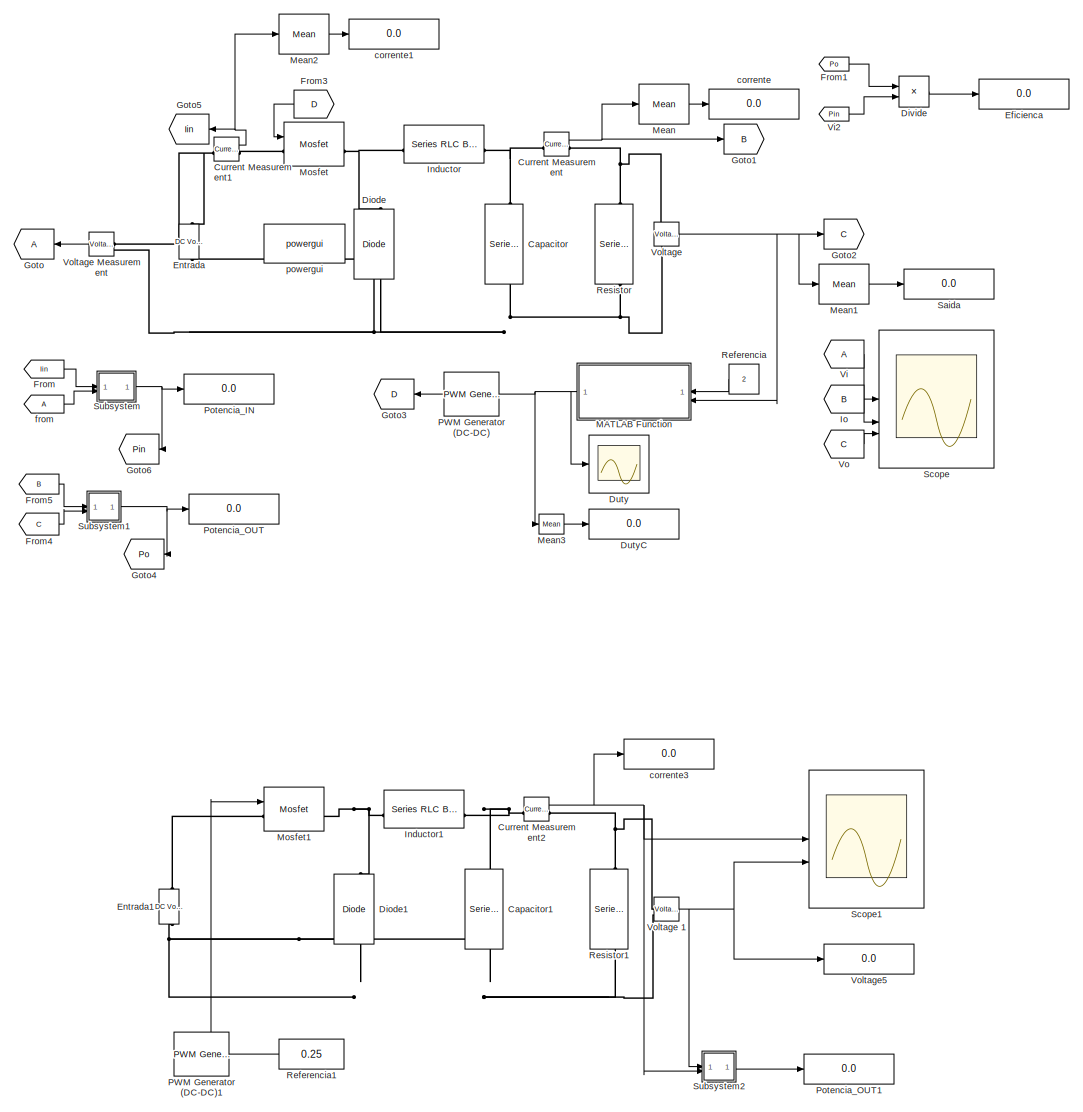
[diagram: root canvas - part 1/1, most of the canvas]
MODEL slx_6a251fbd3c7e
KIND model
CONFIG AbsTol = auto
CONFIG EnableMultiTasking = off
CONFIG FixedStep = auto
CONFIG MaxStep = auto
CONFIG MinStep = auto
CONFIG RelTol = 1e-3
CONFIG SampleTimeConstraint = Unconstrained
CONFIG SolverName = VariableStepAuto
CONFIG StartTime = 0.0
CONFIG StopTime = 0.1
BLOCK [Reference] Capacitor  REF=spsSeriesRLCBranchLib/Series RLC Branch
  LibrarySourceBlock = sps_lib/Passives/Series RLC Branch
  NameLocation = left
  SourceBlock = spsSeriesRLCBranchLib/Series RLC Branch
  SourceType = Series RLC Branch
BLOCK [Reference] Capacitor1  REF=spsSeriesRLCBranchLib/Series RLC Branch
  LibrarySourceBlock = sps_lib/Passives/Series RLC Branch
  NameLocation = left
  SourceBlock = spsSeriesRLCBranchLib/Series RLC Branch
  SourceType = Series RLC Branch
BLOCK [Reference] Current Measurement  REF=spsCurrentMeasurementLib/Current Measurement
  LibrarySourceBlock = sps_lib/Sensors and Measurements/Current Measurement
  SourceBlock = spsCurrentMeasurementLib/Current Measurement
  SourceType = Current Measurement
  UserDataPersistent = on
BLOCK [Reference] Current Measurement1  REF=spsCurrentMeasurementLib/Current Measurement
  LibrarySourceBlock = sps_lib/Sensors and Measurements/Current Measurement
  SourceBlock = spsCurrentMeasurementLib/Current Measurement
  SourceType = Current Measurement
  UserDataPersistent = on
BLOCK [Reference] Current Measurement2  REF=spsCurrentMeasurementLib/Current Measurement
  LibrarySourceBlock = sps_lib/Sensors and Measurements/Current Measurement
  SourceBlock = spsCurrentMeasurementLib/Current Measurement
  SourceType = Current Measurement
  UserDataPersistent = on
BLOCK [Reference] Diode  REF=spsDiodeLib/Diode
  LibrarySourceBlock = sps_lib/Power Electronics/Diode
  NameLocation = right
  SourceBlock = spsDiodeLib/Diode
  SourceType = Diode
BLOCK [Reference] Diode1  REF=spsDiodeLib/Diode
  LibrarySourceBlock = sps_lib/Power Electronics/Diode
  NameLocation = right
  SourceBlock = spsDiodeLib/Diode
  SourceType = Diode
BLOCK [Product] Divide
  Inputs = */
BLOCK [Scope] Duty
  Floating = off
  NumInputPorts = 1
  ScopeSpecificationString = Simulink.scopes.TimeScopeBlockCfg('CurrentConfiguration', extmgr.ConfigurationSet(extmgr.Configuration('Core','General UI',true),extmgr.Configuration('Core','Source UI',true),extmgr.Configuration('Sources','WiredSimulink',true,'DataLoggingVariableName','ScopeData1'),extmgr.Configuration('Visuals','Time Domain',true,'SerializedDisplays',{struct('MinYLimReal','-0.02754','MaxYLimReal','0.44807','YLab...<+1679ch>
BLOCK [Display] DutyC
  Decimation = 1
BLOCK [Display] Eficienca
  Decimation = 1
BLOCK [Reference] Entrada  REF=spsDCVoltageSourceLib/DC Voltage Source
  LibrarySourceBlock = sps_lib/Sources/DC Voltage Source
  NameLocation = right
  SourceBlock = spsDCVoltageSourceLib/DC Voltage Source
  SourceType = DC Voltage Source
BLOCK [Reference] Entrada1  REF=spsDCVoltageSourceLib/DC Voltage Source
  LibrarySourceBlock = sps_lib/Sources/DC Voltage Source
  NameLocation = right
  SourceBlock = spsDCVoltageSourceLib/DC Voltage Source
  SourceType = DC Voltage Source
BLOCK [From] From
  GotoTag = Iin
BLOCK [From] From1
  GotoTag = Po
BLOCK [From] From3
  GotoTag = D
  NameLocation = top
BLOCK [From] From4
  GotoTag = C
BLOCK [From] From5
  GotoTag = B
  NameLocation = top
BLOCK [Goto] Goto
BLOCK [Goto] Goto1
  GotoTag = B
BLOCK [Goto] Goto2
  GotoTag = C
  NameLocation = top
BLOCK [Goto] Goto3
  GotoTag = D
  NameLocation = top
BLOCK [Goto] Goto4
  GotoTag = Po
BLOCK [Goto] Goto5
  GotoTag = Iin
  NameLocation = top
BLOCK [Goto] Goto6
  GotoTag = Pin
BLOCK [Reference] Inductor  REF=spsSeriesRLCBranchLib/Series RLC Branch
  LibrarySourceBlock = sps_lib/Passives/Series RLC Branch
  SourceBlock = spsSeriesRLCBranchLib/Series RLC Branch
  SourceType = Series RLC Branch
BLOCK [Reference] Inductor1  REF=spsSeriesRLCBranchLib/Series RLC Branch
  LibrarySourceBlock = sps_lib/Passives/Series RLC Branch
  SourceBlock = spsSeriesRLCBranchLib/Series RLC Branch
  SourceType = Series RLC Branch
BLOCK [From] Io
  GotoTag = B
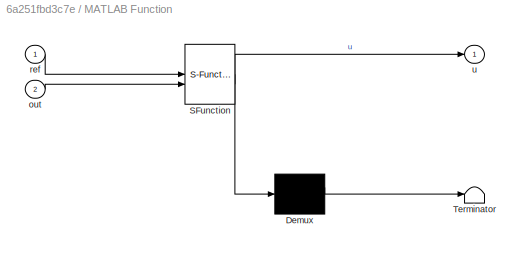
BLOCK [SubSystem] MATLAB Function
  ErrorFcn = Stateflow.Translate.translate
  NameLocation = top
  PermitHierarchicalResolution = ExplicitOnly
  SFBlockType = MATLAB Function
  TreatAsAtomicUnit = on
BLOCK [Demux] MATLAB Function/ Demux 
  Outputs = 1
BLOCK [S-Function] MATLAB Function/ SFunction 
  EnableBusSupport = on
  FunctionName = sf_sfun
  PortCounts = [2 2]
  SFcnIsStateOwnerBlock = off
  SFunctionDeploymentMode = off
  Tag = Stateflow S-Function 2
BLOCK [Terminator] MATLAB Function/ Terminator 
BLOCK [Inport] MATLAB Function/out
  Port = 2
BLOCK [Inport] MATLAB Function/ref
BLOCK [Outport] MATLAB Function/u
BLOCK [Reference] Mean  REF=spsMeanLib/Mean
  LibrarySourceBlock = sps_lib/Sensors and Measurements/Mean
  SourceBlock = spsMeanLib/Mean
  SourceType = Mean
BLOCK [Reference] Mean1  REF=spsMeanLib/Mean
  LibrarySourceBlock = sps_lib/Sensors and Measurements/Mean
  SourceBlock = spsMeanLib/Mean
  SourceType = Mean
BLOCK [Reference] Mean2  REF=spsMeanLib/Mean
  LibrarySourceBlock = sps_lib/Sensors and Measurements/Mean
  SourceBlock = spsMeanLib/Mean
  SourceType = Mean
BLOCK [Reference] Mean3  REF=spsMeanLib/Mean
  LibrarySourceBlock = sps_lib/Sensors and Measurements/Mean
  SourceBlock = spsMeanLib/Mean
  SourceType = Mean
BLOCK [Reference] Mosfet  REF=spsMosfetLib/Mosfet
  LibrarySourceBlock = sps_lib/Power Electronics/Mosfet
  SourceBlock = spsMosfetLib/Mosfet
  SourceType = Mosfet
BLOCK [Reference] Mosfet1  REF=spsMosfetLib/Mosfet
  LibrarySourceBlock = sps_lib/Power Electronics/Mosfet
  SourceBlock = spsMosfetLib/Mosfet
  SourceType = Mosfet
BLOCK [Reference] PWM Generator (DC-DC)  REF=spsPWMGeneratorDCDCLib/PWM Generator
(DC-DC)
  LibrarySourceBlock = sps_lib/Power Electronics/Power Electronics Control/PWM Generator\n(DC-DC)
  NameLocation = top
  SourceBlock = spsPWMGeneratorDCDCLib/PWM Generator\n(DC-DC)
  SourceType = PWM Generator (DC-DC)
BLOCK [Reference] PWM Generator (DC-DC)1  REF=spsPWMGeneratorDCDCLib/PWM Generator
(DC-DC)
  LibrarySourceBlock = sps_lib/Power Electronics/Power Electronics Control/PWM Generator\n(DC-DC)
  NameLocation = top
  SourceBlock = spsPWMGeneratorDCDCLib/PWM Generator\n(DC-DC)
  SourceType = PWM Generator (DC-DC)
BLOCK [Display] Potencia_IN
  Decimation = 1
BLOCK [Display] Potencia_OUT
  Decimation = 1
BLOCK [Display] Potencia_OUT1
  Decimation = 1
BLOCK [Constant] Referencia
  NameLocation = top
  Value = 2
BLOCK [Constant] Referencia1
  NameLocation = top
  Value = 0.25
BLOCK [Reference] Resistor  REF=spsSeriesRLCBranchLib/Series RLC Branch
  LibrarySourceBlock = sps_lib/Passives/Series RLC Branch
  NameLocation = left
  SourceBlock = spsSeriesRLCBranchLib/Series RLC Branch
  SourceType = Series RLC Branch
BLOCK [Reference] Resistor1  REF=spsSeriesRLCBranchLib/Series RLC Branch
  LibrarySourceBlock = sps_lib/Passives/Series RLC Branch
  NameLocation = left
  SourceBlock = spsSeriesRLCBranchLib/Series RLC Branch
  SourceType = Series RLC Branch
BLOCK [Display] Saida
  Decimation = 1
BLOCK [Scope] Scope
  Floating = off
  NumInputPorts = 3
  ScopeSpecificationString = Simulink.scopes.TimeScopeBlockCfg('CurrentConfiguration', extmgr.ConfigurationSet(extmgr.Configuration('Core','General UI',true),extmgr.Configuration('Core','Source UI',true),extmgr.Configuration('Sources','WiredSimulink',true),extmgr.Configuration('Visuals','Time Domain',true,'SerializedDisplays',{struct('MinYLimReal','9.00000','MaxYLimReal','11.00000','YLabelReal','','MinYLimMag','9.00000','MaxY...<+3157ch>
BLOCK [Scope] Scope1
  Floating = off
  NumInputPorts = 2
  ScopeSpecificationString = Simulink.scopes.TimeScopeBlockCfg('CurrentConfiguration', extmgr.ConfigurationSet(extmgr.Configuration('Core','General UI',true),extmgr.Configuration('Core','Source UI',true),extmgr.Configuration('Sources','WiredSimulink',true,'DataLoggingVariableName','ScopeData2'),extmgr.Configuration('Visuals','Time Domain',true,'SerializedDisplays',{struct('MinYLimReal','1.87383','MaxYLimReal','2.42685','YLabe...<+2329ch>
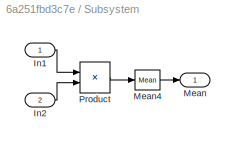
BLOCK [SubSystem] Subsystem
BLOCK [Inport] Subsystem/In1
BLOCK [Inport] Subsystem/In2
  Port = 2
BLOCK [Outport] Subsystem/Mean
BLOCK [Reference] Subsystem/Mean4  REF=spsMeanLib/Mean
  LibrarySourceBlock = sps_lib/Sensors and Measurements/Mean
  SourceBlock = spsMeanLib/Mean
  SourceType = Mean
BLOCK [Product] Subsystem/Product
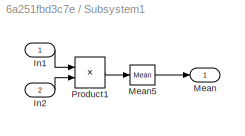
BLOCK [SubSystem] Subsystem1
BLOCK [Inport] Subsystem1/In1
BLOCK [Inport] Subsystem1/In2
  Port = 2
BLOCK [Outport] Subsystem1/Mean
BLOCK [Reference] Subsystem1/Mean5  REF=spsMeanLib/Mean
  LibrarySourceBlock = sps_lib/Sensors and Measurements/Mean
  SourceBlock = spsMeanLib/Mean
  SourceType = Mean
BLOCK [Product] Subsystem1/Product1
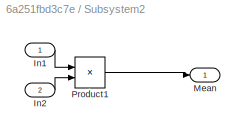
BLOCK [SubSystem] Subsystem2
BLOCK [Inport] Subsystem2/In1
BLOCK [Inport] Subsystem2/In2
  Port = 2
BLOCK [Outport] Subsystem2/Mean
BLOCK [Product] Subsystem2/Product1
BLOCK [From] Vi
BLOCK [From] Vi2
  GotoTag = Pin
BLOCK [From] Vo
  GotoTag = C
BLOCK [Reference] Voltage   REF=spsVoltageMeasurementLib/Voltage Measurement
  LibrarySourceBlock = sps_lib/Sensors and Measurements/Voltage Measurement
  SourceBlock = spsVoltageMeasurementLib/Voltage Measurement
  SourceType = Voltage Measurement
  UserDataPersistent = on
BLOCK [Reference] Voltage 1  REF=spsVoltageMeasurementLib/Voltage Measurement
  LibrarySourceBlock = sps_lib/Sensors and Measurements/Voltage Measurement
  SourceBlock = spsVoltageMeasurementLib/Voltage Measurement
  SourceType = Voltage Measurement
  UserDataPersistent = on
BLOCK [Reference] Voltage Measurement  REF=spsVoltageMeasurementLib/Voltage Measurement
  LibrarySourceBlock = sps_lib/Sensors and Measurements/Voltage Measurement
  SourceBlock = spsVoltageMeasurementLib/Voltage Measurement
  SourceType = Voltage Measurement
  UserDataPersistent = on
BLOCK [Display] Voltage5
  Decimation = 1
BLOCK [Display] corrente
  Decimation = 1
  NameLocation = top
BLOCK [Display] corrente1
  Decimation = 1
  NameLocation = top
BLOCK [Display] corrente3
  Decimation = 1
BLOCK [From] from
BLOCK [Reference] powergui  REF=sps_lib/powergui
  LibrarySourceBlock = sps_lib/powergui
  Priority = 1
  SourceBlock = sps_lib/powergui
  SourceType = PSB option menu block
NET Current Measurement1:1 -> Goto5:1, Mean2:1
NET Current Measurement2:1 -> Scope1:1, Subsystem2:2, corrente3:1
NET Current Measurement:1 -> Goto1:1, Mean:1
LINE Divide:1 -> Eficienca:1
LINE From1:1 -> Divide:1
LINE From3:1 -> Mosfet:1
LINE From4:1 -> Subsystem1:2
LINE From5:1 -> Subsystem1:1
LINE From:1 -> Subsystem:1
LINE Io:1 -> Scope:2
NET MATLAB Function:1 -> Duty:1, Mean3:1, PWM Generator (DC-DC):1
LINE Mean1:1 -> Saida:1
LINE Mean2:1 -> corrente1:1
LINE Mean3:1 -> DutyC:1
LINE Mean:1 -> corrente:1
LINE PWM Generator (DC-DC)1:1 -> Mosfet1:1
LINE PWM Generator (DC-DC):1 -> Goto3:1
LINE Referencia1:1 -> PWM Generator (DC-DC)1:1
LINE Referencia:1 -> MATLAB Function:1
LINE Subsystem/In1:1 -> Subsystem/Product:1
LINE Subsystem/In2:1 -> Subsystem/Product:2
LINE Subsystem/Mean4:1 -> Subsystem/Mean:1
LINE Subsystem/Product:1 -> Subsystem/Mean4:1
LINE Subsystem1/In1:1 -> Subsystem1/Product1:1
LINE Subsystem1/In2:1 -> Subsystem1/Product1:2
LINE Subsystem1/Mean5:1 -> Subsystem1/Mean:1
LINE Subsystem1/Product1:1 -> Subsystem1/Mean5:1
NET Subsystem1:1 -> Goto4:1, Potencia_OUT:1
LINE Subsystem2/In1:1 -> Subsystem2/Product1:1
LINE Subsystem2/In2:1 -> Subsystem2/Product1:2
LINE Subsystem2/Product1:1 -> Subsystem2/Mean:1
LINE Subsystem2:1 -> Potencia_OUT1:1
NET Subsystem:1 -> Goto6:1, Potencia_IN:1
LINE Vi2:1 -> Divide:2
LINE Vi:1 -> Scope:1
LINE Vo:1 -> Scope:3
NET Voltage 1:1 -> Scope1:2, Subsystem2:1, Voltage5:1
NET Voltage :1 -> Goto2:1, MATLAB Function:2, Mean1:1
LINE Voltage Measurement:1 -> Goto:1
LINE from:1 -> Subsystem:2
PNET net1: Capacitor1:LConn1 -- Current Measurement2:LConn1 -- Inductor1:RConn1
PNET net2: Capacitor1:RConn1 -- Diode1:LConn1 -- Entrada1:LConn1 -- Resistor1:RConn1 -- Voltage 1:LConn2
PNET net3: Capacitor:LConn1 -- Current Measurement:LConn1 -- Inductor:RConn1
PNET net4: Capacitor:RConn1 -- Diode:LConn1 -- Entrada:LConn1 -- Resistor:RConn1 -- Voltage :LConn2 -- Voltage Measurement:LConn2
PNET net5: Current Measurement1:LConn1 -- Entrada:RConn1 -- Voltage Measurement:LConn1
PLINE Current Measurement1:RConn1 -- Mosfet:LConn1
PNET net6: Current Measurement2:RConn1 -- Resistor1:LConn1 -- Voltage 1:LConn1
PNET net7: Current Measurement:RConn1 -- Resistor:LConn1 -- Voltage :LConn1
PNET net8: Diode1:RConn1 -- Inductor1:LConn1 -- Mosfet1:RConn1
PNET net9: Diode:RConn1 -- Inductor:LConn1 -- Mosfet:RConn1
PLINE Entrada1:RConn1 -- Mosfet1:LConn1
note: NET lines group one-source signal fan-out (src -> all destinations, sorted); 1:1 wires keep LINE; PNET lines group multi-terminal physical nets as a canonical sorted terminal list (undirected conserving connections); 2-terminal nets keep the pairwise PLINE form
CHART MATLAB Function states=1 transitions=1
  STATE_LABEL 'eML_blk_kernel()'
  STATE_LABEL 'SCRIPT:\nfunction u = controlador_PI(ref, out)\n\n\nKp = 0.01;       % Ganho proporcional\nKi = 10;       % Ganho integral\n\n% Persistência das variáveis\npersistent integralErro\nif isempty(integralErro)\n    integralErro = 0;\nend\n\n% Cálculo do erro\nerro = ref - out;\n\n% Tempo de amostragem (ajuste conforme o sistema)\nTs = 1e-6;\n\n% Integração do erro\nintegralErro = integralErro + erro * Ts;\n\n% Saída do con...<+44ch>'
CHART  states=0 transitions=0
